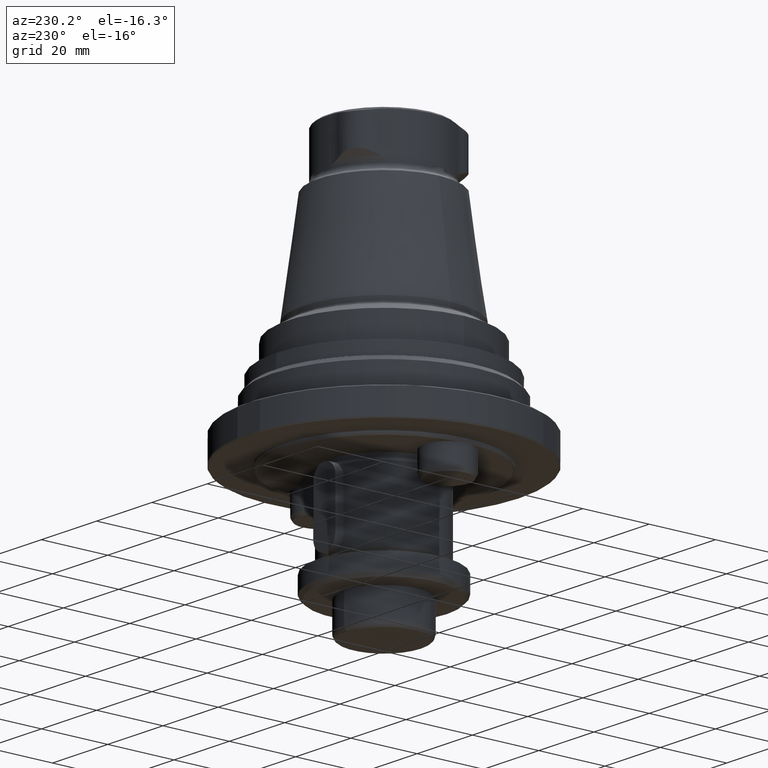
[diagram: clean part render]
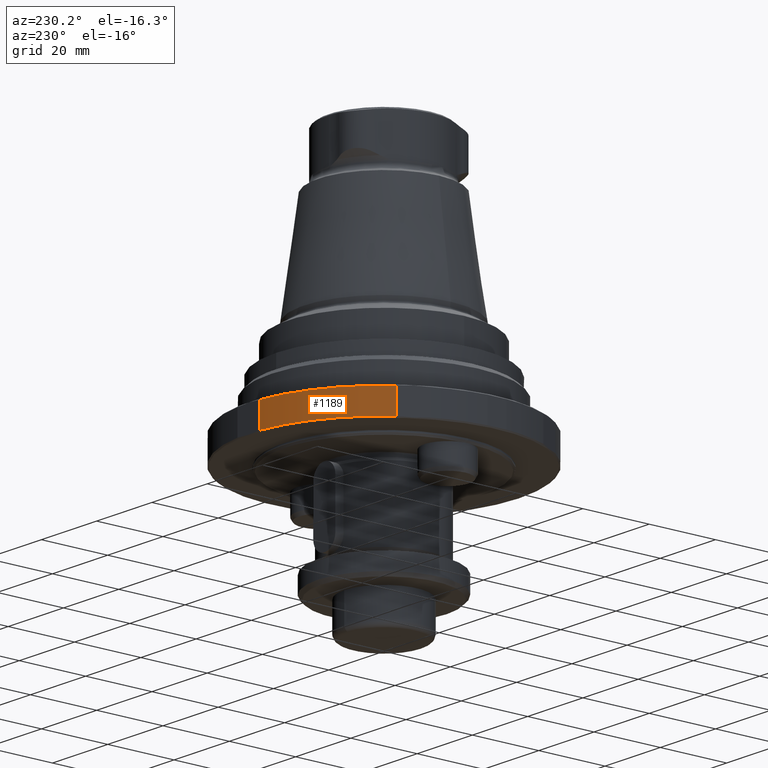
[diagram: same view with one face highlighted and labeled with its STEP entity id]
A machine part, auxiliary view. The second image highlights one B-rep face of the part: STEP entity #1189.
In plain terms, the highlighted cylindrical surface (partial cylindrical patch) has radius 41 mm, axis along (-0, 0, -1).
Its self-contained STEP definition (entity closure, byte-faithful):
#56=LINE('',#2005,#92);
#57=LINE('',#2009,#93);
#92=VECTOR('',#1586,1000.);
#93=VECTOR('',#1591,1000.);
#177=CYLINDRICAL_SURFACE('',#1331,41.);
#346=ORIENTED_EDGE('',*,*,#616,.F.);
#347=ORIENTED_EDGE('',*,*,#617,.T.);
#348=ORIENTED_EDGE('',*,*,#596,.T.);
#349=ORIENTED_EDGE('',*,*,#615,.T.);
#596=EDGE_CURVE('',#748,#747,#855,.T.);
#615=EDGE_CURVE('',#747,#762,#56,.T.);
#616=EDGE_CURVE('',#763,#762,#863,.T.);
#617=EDGE_CURVE('',#763,#748,#57,.F.);
#747=VERTEX_POINT('',#1945);
#748=VERTEX_POINT('',#1947);
#762=VERTEX_POINT('',#2004);
#763=VERTEX_POINT('',#2008);
#855=CIRCLE('',#1319,41.);
#863=CIRCLE('',#1332,41.);
#954=EDGE_LOOP('',(#346,#347,#348,#349));
#1079=FACE_BOUND('',#954,.T.);
#1189=ADVANCED_FACE('',(#1079),#177,.T.);
#1319=AXIS2_PLACEMENT_3D('',#1946,#1558,#1559);
#1331=AXIS2_PLACEMENT_3D('',#2006,#1587,#1588);
#1332=AXIS2_PLACEMENT_3D('',#2007,#1589,#1590);
#1558=DIRECTION('',(-1.04225259501902E-17,1.66533453693774E-16,-1.));
#1559=DIRECTION('',(0.,-1.,-3.33066907387547E-16));
#1586=DIRECTION('',(-1.04225259501902E-17,1.66533453693774E-16,-1.));
#1587=DIRECTION('',(-1.04225259501902E-17,1.66533453693774E-16,-1.));
#1588=DIRECTION('',(0.,-1.,-3.33066907387547E-16));
#1589=DIRECTION('',(-1.04225259501902E-17,1.66533453693774E-16,-1.));
#1590=DIRECTION('',(0.,-1.,-3.33066907387547E-16));
#1591=DIRECTION('',(-1.04225259501902E-17,1.66533453693774E-16,-1.));
#1945=CARTESIAN_POINT('',(-4.0447496832313,40.8,-1.29999999999999));
#1946=CARTESIAN_POINT('',(7.78346811868973E-15,1.04860564675846E-14,-1.3));
#1947=CARTESIAN_POINT('',(-33.3114616327895,23.9028559776274,-1.29999999999999));
#2004=CARTESIAN_POINT('',(-4.04474968323125,40.8,-8.70000000000001));
#2005=CARTESIAN_POINT('',(-4.0447496832313,40.8,-0.999999999999994));
#2006=CARTESIAN_POINT('',(7.78659487647478E-15,1.04360964314765E-14,-1.00000000000001));
#2007=CARTESIAN_POINT('',(7.70634142665832E-15,1.17184040249185E-14,-8.70000000000001));
#2008=CARTESIAN_POINT('',(-33.3114616327895,23.9028559776273,-8.7));
#2009=CARTESIAN_POINT('',(-33.3114616327895,23.9028559776274,-1.));